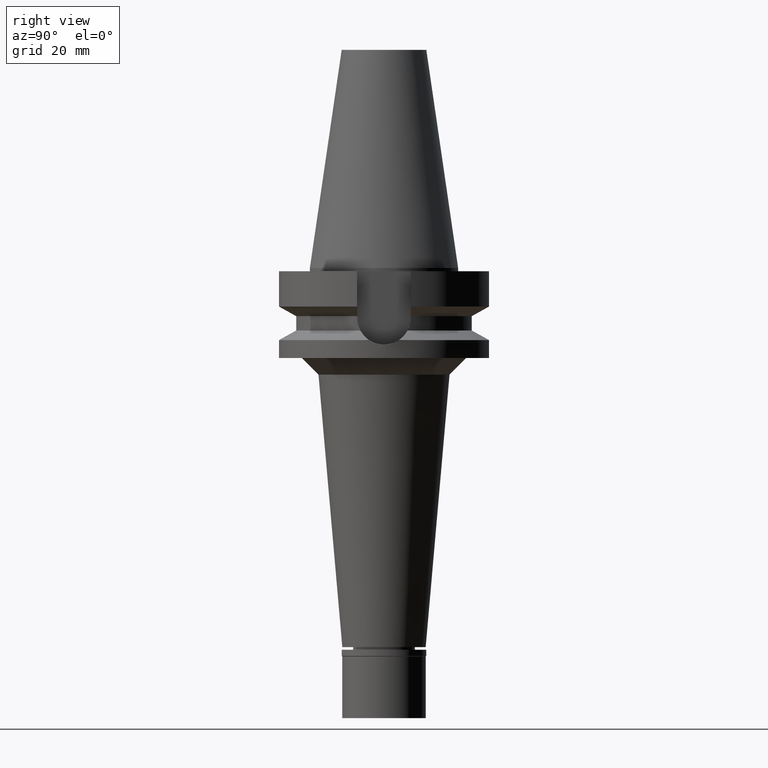
[diagram: clean part render]
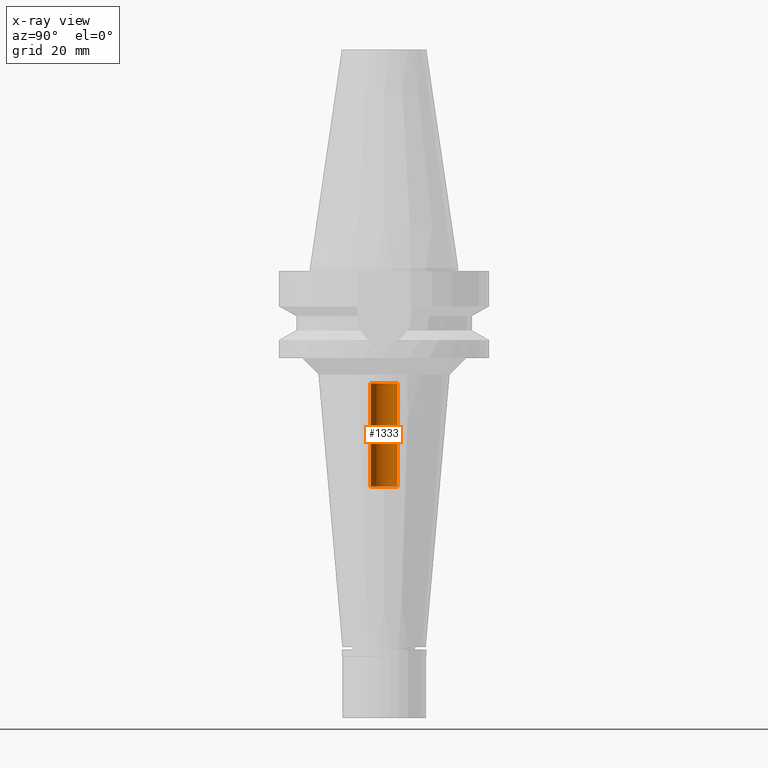
[diagram: x-ray — body ghosted, one internal face saturated and labeled with its STEP entity id]
A machine part, right view, then the same camera in x-ray: the body is ghosted and one INTERNAL B-rep face — a face not visible from any outside direction — is saturated and labeled: STEP entity #1333.
In plain terms, the highlighted cylindrical surface (edge-blend (fillet) strip) has radius 4 mm, axis along (0, 0, -1).
Its self-contained STEP definition (entity closure, byte-faithful):
#71 = AXIS2_PLACEMENT_3D ( 'NONE', #503, #954, #2171 ) ;
#196 = ORIENTED_EDGE ( 'NONE', *, *, #1966, .T. ) ;
#293 = CARTESIAN_POINT ( 'NONE',  ( 0.0000000000000000000, 2.144479009986999603E-14, -34.60000000000000142 ) ) ;
#403 = EDGE_CURVE ( 'NONE', #2058, #854, #773, .T. ) ;
#410 = DIRECTION ( 'NONE',  ( 0.0000000000000000000, -1.000000000000000000, 0.0000000000000000000 ) ) ;
#431 = CARTESIAN_POINT ( 'NONE',  ( 0.0000000000000000000, 2.144479009986999603E-14, 75.10999999999999943 ) ) ;
#503 = CARTESIAN_POINT ( 'NONE',  ( 0.0000000000000000000, 2.144479009986999603E-14, -65.60000000000000853 ) ) ;
#763 = CARTESIAN_POINT ( 'NONE',  ( 0.0000000000000000000, -4.000000000000000000, -34.60000000000000142 ) ) ;
#773 = CIRCLE ( 'NONE', #3109, 4.000000000000000000 ) ;
#799 = DIRECTION ( 'NONE',  ( 0.0000000000000000000, 1.000000000000000000, 0.0000000000000000000 ) ) ;
#847 = CARTESIAN_POINT ( 'NONE',  ( 0.0000000000000000000, 4.000000000000000000, -65.60000000000000853 ) ) ;
#854 = VERTEX_POINT ( 'NONE', #763 ) ;
#954 = DIRECTION ( 'NONE',  ( 0.0000000000000000000, 0.0000000000000000000, -1.000000000000000000 ) ) ;
#1036 = DIRECTION ( 'NONE',  ( 0.0000000000000000000, 0.0000000000000000000, 1.000000000000000000 ) ) ;
#1125 = VERTEX_POINT ( 'NONE', #847 ) ;
#1141 = VECTOR ( 'NONE', #1754, 1000.000000000000000 ) ;
#1145 = EDGE_LOOP ( 'NONE', ( #2396, #2030, #196, #2513 ) ) ;
#1310 = LINE ( 'NONE', #1525, #1141 ) ;
#1333 = ADVANCED_FACE ( 'NONE', ( #2340 ), #3089, .F. ) ;
#1525 = CARTESIAN_POINT ( 'NONE',  ( 0.0000000000000000000, 4.000000000000000000, -65.60000000000000853 ) ) ;
#1754 = DIRECTION ( 'NONE',  ( 0.0000000000000000000, 0.0000000000000000000, 1.000000000000000000 ) ) ;
#1766 = CARTESIAN_POINT ( 'NONE',  ( 0.0000000000000000000, -4.000000000000000000, -65.60000000000000853 ) ) ;
#1805 = CARTESIAN_POINT ( 'NONE',  ( 0.0000000000000000000, 4.000000000000000000, -34.60000000000000142 ) ) ;
#1966 = EDGE_CURVE ( 'NONE', #2084, #1125, #3119, .T. ) ;
#2030 = ORIENTED_EDGE ( 'NONE', *, *, #2794, .F. ) ;
#2058 = VERTEX_POINT ( 'NONE', #1805 ) ;
#2084 = VERTEX_POINT ( 'NONE', #2987 ) ;
#2161 = DIRECTION ( 'NONE',  ( 0.0000000000000000000, 0.0000000000000000000, -1.000000000000000000 ) ) ;
#2171 = DIRECTION ( 'NONE',  ( 0.0000000000000000000, -1.000000000000000000, 0.0000000000000000000 ) ) ;
#2340 = FACE_OUTER_BOUND ( 'NONE', #1145, .T. ) ;
#2396 = ORIENTED_EDGE ( 'NONE', *, *, #403, .T. ) ;
#2402 = VECTOR ( 'NONE', #2969, 1000.000000000000000 ) ;
#2513 = ORIENTED_EDGE ( 'NONE', *, *, #2741, .T. ) ;
#2517 = LINE ( 'NONE', #1766, #2402 ) ;
#2741 = EDGE_CURVE ( 'NONE', #1125, #2058, #1310, .T. ) ;
#2794 = EDGE_CURVE ( 'NONE', #2084, #854, #2517, .T. ) ;
#2803 = AXIS2_PLACEMENT_3D ( 'NONE', #431, #2161, #410 ) ;
#2969 = DIRECTION ( 'NONE',  ( 0.0000000000000000000, 0.0000000000000000000, 1.000000000000000000 ) ) ;
#2987 = CARTESIAN_POINT ( 'NONE',  ( 0.0000000000000000000, -4.000000000000000000, -65.60000000000000853 ) ) ;
#3089 = CYLINDRICAL_SURFACE ( 'NONE', #2803, 4.000000000000000000 ) ;
#3109 = AXIS2_PLACEMENT_3D ( 'NONE', #293, #1036, #799 ) ;
#3119 = CIRCLE ( 'NONE', #71, 4.000000000000000000 ) ;